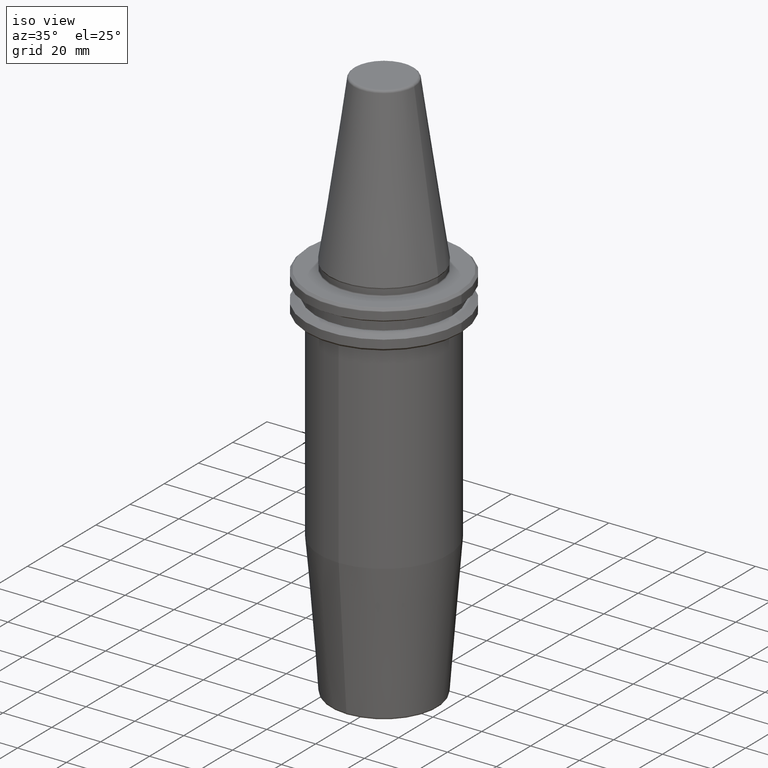
[diagram: clean part render]
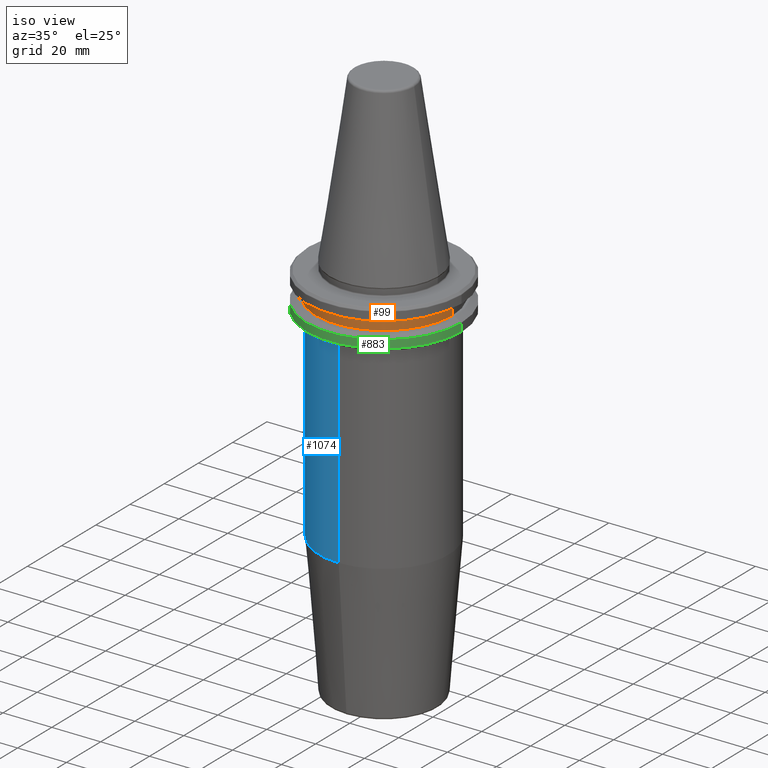
[diagram: same view with three faces highlighted in distinct colors, each labeled with its STEP entity id]
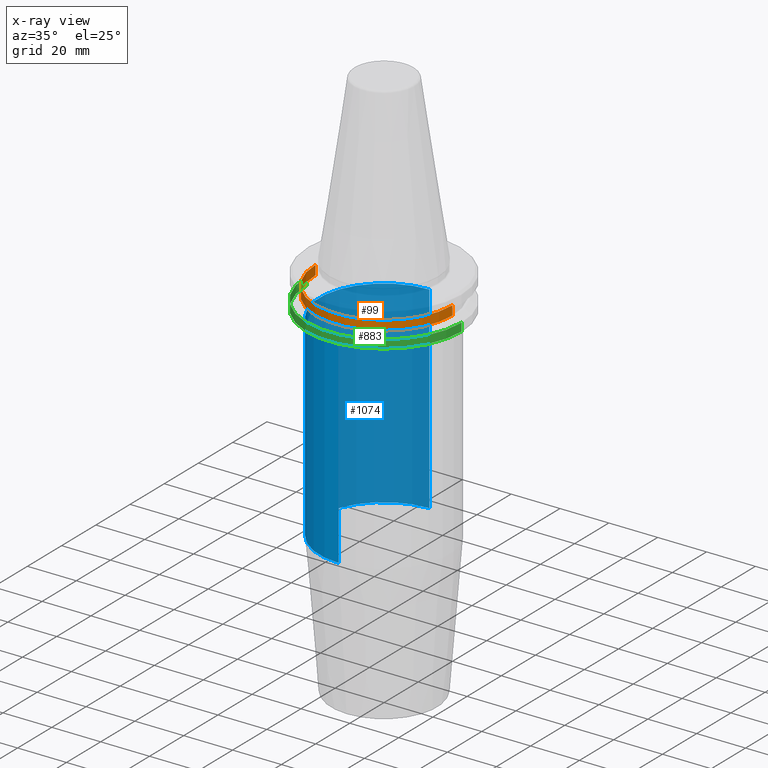
[diagram: x-ray of the same camera — body ghosted, the three highlighted faces saturated]
A machine part, iso view with three faces highlighted in distinct colors.
The next image is the same camera in x-ray (body ghosted, the three faces saturated) — at least one of them is partly hidden behind the body in this view.
Their STEP definitions:

[orange] entity #99 — the highlighted cylindrical surface (partial cylindrical patch) has radius 28 mm, axis along (-0, -0, 1).
#82 = ORIENTED_EDGE ( 'NONE', *, *, #960, .F. ) ;
#90 = CARTESIAN_POINT ( 'NONE',  ( 28.00000000000000000, 0.0000000000000000000, 113.5216080541959500 ) ) ;
#91 = CARTESIAN_POINT ( 'NONE',  ( 0.0000000000000000000, 0.0000000000000000000, 113.5216080541959500 ) ) ;
#99 = ADVANCED_FACE ( 'NONE', ( #510 ), #739, .T. ) ;
#112 = CARTESIAN_POINT ( 'NONE',  ( 28.00000000000000000, 0.0000000000000000000, -13.00000000000001100 ) ) ;
#162 = LINE ( 'NONE', #90, #1156 ) ;
#203 = DIRECTION ( 'NONE',  ( 1.000000000000000000, 0.0000000000000000000, 0.0000000000000000000 ) ) ;
#242 = DIRECTION ( 'NONE',  ( -0.0000000000000000000, -0.0000000000000000000, 1.000000000000000000 ) ) ;
#264 = CARTESIAN_POINT ( 'NONE',  ( -28.00000000000000000, 3.429011037612589300E-015, -13.00000000000001100 ) ) ;
#302 = DIRECTION ( 'NONE',  ( -0.0000000000000000000, -0.0000000000000000000, 1.000000000000000000 ) ) ;
#308 = ORIENTED_EDGE ( 'NONE', *, *, #951, .T. ) ;
#389 = AXIS2_PLACEMENT_3D ( 'NONE', #1029, #455, #1123 ) ;
#405 = AXIS2_PLACEMENT_3D ( 'NONE', #91, #1260, #203 ) ;
#455 = DIRECTION ( 'NONE',  ( -0.0000000000000000000, -0.0000000000000000000, 1.000000000000000000 ) ) ;
#495 = CARTESIAN_POINT ( 'NONE',  ( -28.00000000000000000, 3.429011037612589300E-015, 113.5216080541959500 ) ) ;
#510 = FACE_OUTER_BOUND ( 'NONE', #915, .T. ) ;
#565 = CARTESIAN_POINT ( 'NONE',  ( -28.00000000000000000, 3.429011037612589300E-015, -9.199999999999999300 ) ) ;
#596 = ORIENTED_EDGE ( 'NONE', *, *, #1120, .T. ) ;
#645 = VECTOR ( 'NONE', #686, 1000.000000000000000 ) ;
#646 = CARTESIAN_POINT ( 'NONE',  ( 28.00000000000000000, 0.0000000000000000000, -9.199999999999999300 ) ) ;
#659 = CIRCLE ( 'NONE', #389, 28.00000000000000000 ) ;
#670 = ORIENTED_EDGE ( 'NONE', *, *, #1221, .F. ) ;
#677 = VERTEX_POINT ( 'NONE', #565 ) ;
#686 = DIRECTION ( 'NONE',  ( -0.0000000000000000000, -0.0000000000000000000, 1.000000000000000000 ) ) ;
#718 = VERTEX_POINT ( 'NONE', #112 ) ;
#739 = CYLINDRICAL_SURFACE ( 'NONE', #405, 28.00000000000000000 ) ;
#773 = VERTEX_POINT ( 'NONE', #264 ) ;
#818 = VERTEX_POINT ( 'NONE', #646 ) ;
#822 = CARTESIAN_POINT ( 'NONE',  ( 0.0000000000000000000, 0.0000000000000000000, -13.00000000000001100 ) ) ;
#903 = LINE ( 'NONE', #495, #645 ) ;
#915 = EDGE_LOOP ( 'NONE', ( #82, #596, #308, #670 ) ) ;
#921 = DIRECTION ( 'NONE',  ( 1.000000000000000000, 0.0000000000000000000, 0.0000000000000000000 ) ) ;
#950 = CIRCLE ( 'NONE', #1187, 28.00000000000000000 ) ;
#951 = EDGE_CURVE ( 'NONE', #718, #818, #162, .T. ) ;
#960 = EDGE_CURVE ( 'NONE', #773, #677, #903, .T. ) ;
#1029 = CARTESIAN_POINT ( 'NONE',  ( 0.0000000000000000000, 0.0000000000000000000, -9.199999999999999300 ) ) ;
#1120 = EDGE_CURVE ( 'NONE', #773, #718, #950, .T. ) ;
#1123 = DIRECTION ( 'NONE',  ( 1.000000000000000000, 0.0000000000000000000, 0.0000000000000000000 ) ) ;
#1156 = VECTOR ( 'NONE', #302, 1000.000000000000000 ) ;
#1187 = AXIS2_PLACEMENT_3D ( 'NONE', #822, #242, #921 ) ;
#1221 = EDGE_CURVE ( 'NONE', #677, #818, #659, .T. ) ;
#1260 = DIRECTION ( 'NONE',  ( -0.0000000000000000000, -0.0000000000000000000, 1.000000000000000000 ) ) ;

[blue] entity #1074 — the highlighted cylindrical surface (partial cylindrical patch) has radius 26.5 mm, axis along (-0, 0, -1).
#22 = VERTEX_POINT ( 'NONE', #1085 ) ;
#37 = FACE_OUTER_BOUND ( 'NONE', #930, .T. ) ;
#119 = DIRECTION ( 'NONE',  ( -0.0000000000000000000, 1.256330602389183300E-016, -1.000000000000000000 ) ) ;
#123 = DIRECTION ( 'NONE',  ( 0.0000000000000000000, 1.000000000000000000, 0.0000000000000000000 ) ) ;
#129 = CARTESIAN_POINT ( 'NONE',  ( 0.0000000000000000000, 4.467959865220142400E-016, -160.0000000000000000 ) ) ;
#150 = CARTESIAN_POINT ( 'NONE',  ( 3.245314017740487300E-015, -26.50000000000001100, -160.0000000000000000 ) ) ;
#190 = ORIENTED_EDGE ( 'NONE', *, *, #248, .F. ) ;
#191 = CARTESIAN_POINT ( 'NONE',  ( 0.0000000000000000000, 26.49999999999999600, -20.98284271247460400 ) ) ;
#236 = CYLINDRICAL_SURFACE ( 'NONE', #868, 26.50000000000001100 ) ;
#239 = DIRECTION ( 'NONE',  ( -0.0000000000000000000, 1.256330602389183300E-016, -1.000000000000000000 ) ) ;
#248 = EDGE_CURVE ( 'NONE', #22, #1072, #872, .T. ) ;
#262 = ORIENTED_EDGE ( 'NONE', *, *, #1237, .T. ) ;
#291 = CARTESIAN_POINT ( 'NONE',  ( 0.0000000000000000000, -1.701835490922485000E-014, -20.98284271247460700 ) ) ;
#342 = AXIS2_PLACEMENT_3D ( 'NONE', #537, #239, #123 ) ;
#391 = DIRECTION ( 'NONE',  ( 0.0000000000000000000, 1.000000000000000000, 1.309225264888155600E-016 ) ) ;
#518 = ORIENTED_EDGE ( 'NONE', *, *, #923, .T. ) ;
#537 = CARTESIAN_POINT ( 'NONE',  ( 0.0000000000000000000, -6.852417250043207400E-015, -101.9005377829355200 ) ) ;
#547 = CARTESIAN_POINT ( 'NONE',  ( 0.0000000000000000000, 26.50000000000001100, -160.0000000000000000 ) ) ;
#594 = VECTOR ( 'NONE', #839, 1000.000000000000000 ) ;
#707 = CIRCLE ( 'NONE', #830, 26.50000000000001400 ) ;
#736 = EDGE_CURVE ( 'NONE', #1072, #948, #1180, .T. ) ;
#806 = DIRECTION ( 'NONE',  ( 0.0000000000000000000, 1.000000000000000000, 0.0000000000000000000 ) ) ;
#830 = AXIS2_PLACEMENT_3D ( 'NONE', #291, #969, #391 ) ;
#839 = DIRECTION ( 'NONE',  ( -0.0000000000000000000, 1.256330602389183300E-016, -1.000000000000000000 ) ) ;
#861 = LINE ( 'NONE', #547, #594 ) ;
#868 = AXIS2_PLACEMENT_3D ( 'NONE', #129, #996, #806 ) ;
#872 = LINE ( 'NONE', #150, #1126 ) ;
#923 = EDGE_CURVE ( 'NONE', #22, #931, #707, .T. ) ;
#930 = EDGE_LOOP ( 'NONE', ( #190, #518, #262, #1070 ) ) ;
#931 = VERTEX_POINT ( 'NONE', #191 ) ;
#948 = VERTEX_POINT ( 'NONE', #1066 ) ;
#969 = DIRECTION ( 'NONE',  ( -0.0000000000000000000, 1.256330602389183300E-016, -1.000000000000000000 ) ) ;
#996 = DIRECTION ( 'NONE',  ( -0.0000000000000000000, 1.256330602389183300E-016, -1.000000000000000000 ) ) ;
#1066 = CARTESIAN_POINT ( 'NONE',  ( 3.245314017740486600E-015, 26.50000000000000000, -101.9005377829355200 ) ) ;
#1070 = ORIENTED_EDGE ( 'NONE', *, *, #736, .F. ) ;
#1072 = VERTEX_POINT ( 'NONE', #1189 ) ;
#1074 = ADVANCED_FACE ( 'NONE', ( #37 ), #236, .T. ) ;
#1085 = CARTESIAN_POINT ( 'NONE',  ( 3.245314017740488100E-015, -26.50000000000003200, -20.98284271247461100 ) ) ;
#1126 = VECTOR ( 'NONE', #119, 1000.000000000000000 ) ;
#1180 = CIRCLE ( 'NONE', #342, 26.50000000000000700 ) ;
#1189 = CARTESIAN_POINT ( 'NONE',  ( 0.0000000000000000000, -26.50000000000001400, -101.9005377829355200 ) ) ;
#1237 = EDGE_CURVE ( 'NONE', #931, #948, #861, .T. ) ;

[green] entity #883 — the highlighted cylindrical surface (partial cylindrical patch) has radius 31.75 mm, axis along (-0, -0, 1).
#21 = VERTEX_POINT ( 'NONE', #338 ) ;
#30 = EDGE_CURVE ( 'NONE', #1158, #21, #285, .T. ) ;
#49 = CARTESIAN_POINT ( 'NONE',  ( -31.75000000000000000, 3.888253587292846500E-015, -14.62183664205671200 ) ) ;
#89 = VECTOR ( 'NONE', #1071, 1000.000000000000000 ) ;
#108 = CARTESIAN_POINT ( 'NONE',  ( 0.0000000000000000000, 0.0000000000000000000, 113.5216080541959500 ) ) ;
#109 = ORIENTED_EDGE ( 'NONE', *, *, #987, .F. ) ;
#207 = ORIENTED_EDGE ( 'NONE', *, *, #1001, .T. ) ;
#216 = CARTESIAN_POINT ( 'NONE',  ( 0.0000000000000000000, 0.0000000000000000000, -14.62183664205671200 ) ) ;
#241 = ORIENTED_EDGE ( 'NONE', *, *, #30, .F. ) ;
#245 = AXIS2_PLACEMENT_3D ( 'NONE', #108, #999, #826 ) ;
#252 = DIRECTION ( 'NONE',  ( -0.0000000000000000000, -0.0000000000000000000, 1.000000000000000000 ) ) ;
#285 = CIRCLE ( 'NONE', #877, 31.75000000000000000 ) ;
#297 = VECTOR ( 'NONE', #408, 1000.000000000000000 ) ;
#312 = CARTESIAN_POINT ( 'NONE',  ( -31.75000000000000000, 3.888253587292846500E-015, 113.5216080541959500 ) ) ;
#338 = CARTESIAN_POINT ( 'NONE',  ( 31.75000000000000000, 0.0000000000000000000, -14.62183664205671200 ) ) ;
#358 = DIRECTION ( 'NONE',  ( 1.000000000000000000, 0.0000000000000000000, 0.0000000000000000000 ) ) ;
#408 = DIRECTION ( 'NONE',  ( -0.0000000000000000000, -0.0000000000000000000, 1.000000000000000000 ) ) ;
#481 = CIRCLE ( 'NONE', #561, 31.75000000000000000 ) ;
#560 = ORIENTED_EDGE ( 'NONE', *, *, #905, .T. ) ;
#561 = AXIS2_PLACEMENT_3D ( 'NONE', #571, #1245, #668 ) ;
#571 = CARTESIAN_POINT ( 'NONE',  ( 0.0000000000000000000, 0.0000000000000000000, -17.93431457505076300 ) ) ;
#668 = DIRECTION ( 'NONE',  ( 1.000000000000000000, 0.0000000000000000000, 0.0000000000000000000 ) ) ;
#693 = VERTEX_POINT ( 'NONE', #1219 ) ;
#699 = CARTESIAN_POINT ( 'NONE',  ( 31.75000000000000000, 0.0000000000000000000, 113.5216080541959500 ) ) ;
#776 = FACE_OUTER_BOUND ( 'NONE', #1067, .T. ) ;
#812 = LINE ( 'NONE', #699, #297 ) ;
#826 = DIRECTION ( 'NONE',  ( 1.000000000000000000, 0.0000000000000000000, 0.0000000000000000000 ) ) ;
#875 = LINE ( 'NONE', #312, #89 ) ;
#877 = AXIS2_PLACEMENT_3D ( 'NONE', #216, #252, #358 ) ;
#878 = VERTEX_POINT ( 'NONE', #1086 ) ;
#883 = ADVANCED_FACE ( 'NONE', ( #776 ), #1007, .T. ) ;
#905 = EDGE_CURVE ( 'NONE', #693, #878, #481, .T. ) ;
#987 = EDGE_CURVE ( 'NONE', #693, #1158, #875, .T. ) ;
#999 = DIRECTION ( 'NONE',  ( -0.0000000000000000000, -0.0000000000000000000, 1.000000000000000000 ) ) ;
#1001 = EDGE_CURVE ( 'NONE', #878, #21, #812, .T. ) ;
#1007 = CYLINDRICAL_SURFACE ( 'NONE', #245, 31.75000000000000000 ) ;
#1067 = EDGE_LOOP ( 'NONE', ( #109, #560, #207, #241 ) ) ;
#1071 = DIRECTION ( 'NONE',  ( -0.0000000000000000000, -0.0000000000000000000, 1.000000000000000000 ) ) ;
#1086 = CARTESIAN_POINT ( 'NONE',  ( 31.75000000000000000, 0.0000000000000000000, -17.93431457505076300 ) ) ;
#1158 = VERTEX_POINT ( 'NONE', #49 ) ;
#1219 = CARTESIAN_POINT ( 'NONE',  ( -31.75000000000000000, 3.888253587292846500E-015, -17.93431457505076300 ) ) ;
#1245 = DIRECTION ( 'NONE',  ( -0.0000000000000000000, -0.0000000000000000000, 1.000000000000000000 ) ) ;